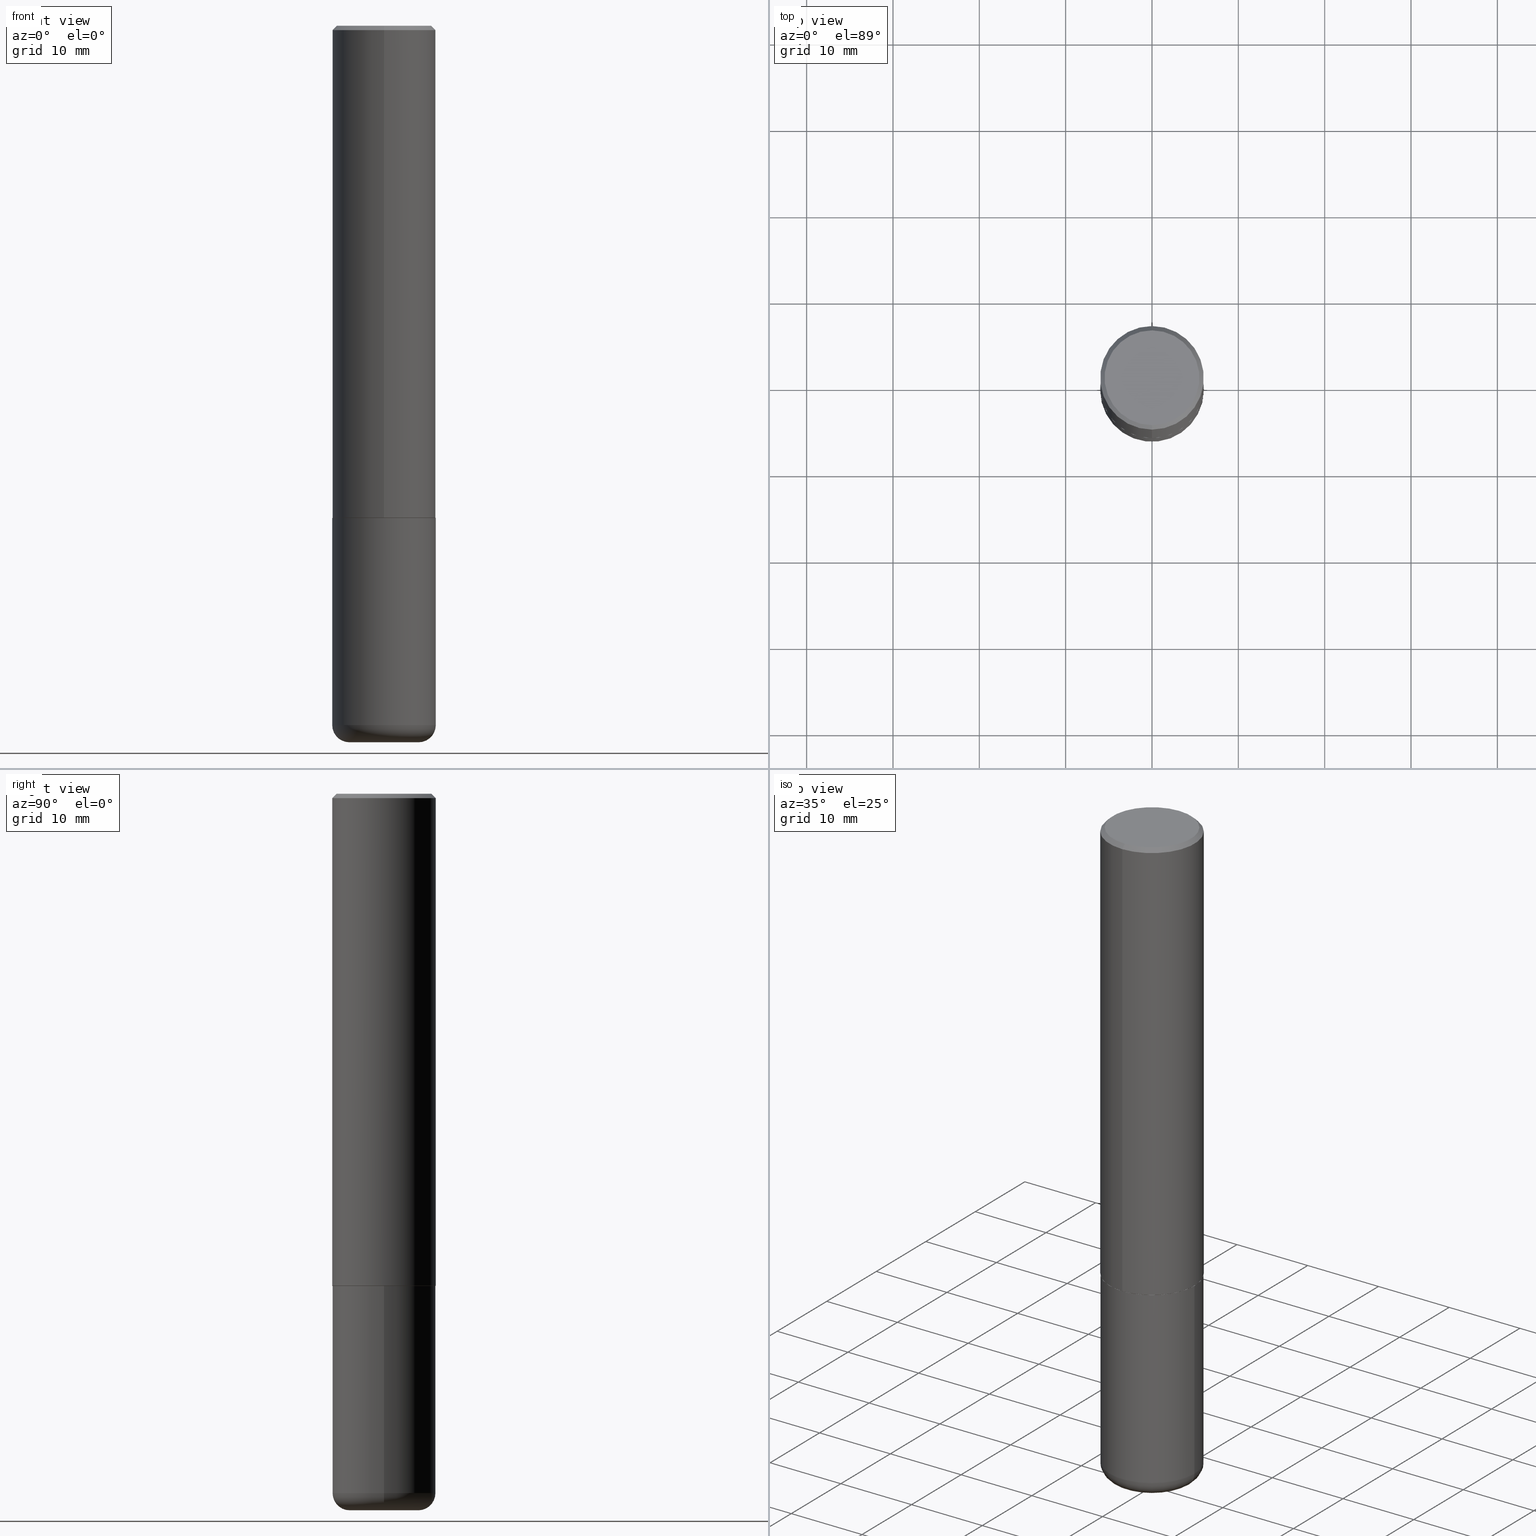
[diagram: canonical four-view strip — front | top / right | iso, engineering-drawing reading convention]
A machine part, canonical four-view strip (front | top / right | iso — engineering-drawing reading convention). The complete STEP part file that produces these views, byte-faithful:
ISO-10303-21;
HEADER;
FILE_DESCRIPTION (( 'STEP AP203' ),
    '1' );
FILE_NAME ('44815.STEP',
    '2024-03-04T08:17:37',
    ( '' ),
    ( '' ),
    'SwSTEP 2.0',
    'SolidWorks 2023',
    '' );
FILE_SCHEMA (( 'CONFIG_CONTROL_DESIGN' ));
ENDSEC;

DATA;
#1 = EDGE_LOOP ( 'NONE', ( #177, #71, #389, #404 ) ) ;
#2 = CLOSED_SHELL ( 'NONE', ( #129, #232, #176, #273, #9, #51 ) ) ;
#3 = CARTESIAN_POINT ( 'NONE',  ( -1.551844647095921325E-15, -0.2162000000000003364, 4.541486610994609223E-16 ) ) ;
#4 =( GEOMETRIC_REPRESENTATION_CONTEXT ( 3 ) GLOBAL_UNCERTAINTY_ASSIGNED_CONTEXT ( ( #40 ) ) GLOBAL_UNIT_ASSIGNED_CONTEXT ( ( #291, #141, #354 ) ) REPRESENTATION_CONTEXT ( 'NONE', 'WORKASPACE' ) );
#5 = SECURITY_CLASSIFICATION ( '', '', #390 ) ;
#6 = APPLICATION_PROTOCOL_DEFINITION ( 'international standard', 'config_control_design', 1994, #17 ) ;
#7 = CONICAL_SURFACE ( 'NONE', #144, 0.2362000000000000210, 0.7853981633974459475 ) ;
#8 = CARTESIAN_POINT ( 'NONE',  ( 5.494812034256692671E-29, -7.825301261377769376E-15, -2.244100000000000428 ) ) ;
#9 = ADVANCED_FACE ( 'NONE', ( #109 ), #128, .T. ) ;
#10 = CARTESIAN_POINT ( 'NONE',  ( -1.620449627073635276E-15, -0.2362000000000001043, -0.01999999999999925449 ) ) ;
#11 = CARTESIAN_POINT ( 'NONE',  ( -1.620449627073635276E-15, -0.2362000000000001043, -0.01999999999999925449 ) ) ;
#12 = EDGE_LOOP ( 'NONE', ( #99, #135, #108, #336 ) ) ;
#13 = ORIENTED_EDGE ( 'NONE', *, *, #85, .F. ) ;
#14 = AXIS2_PLACEMENT_3D ( 'NONE', #220, #155, #21 ) ;
#15 = CARTESIAN_POINT ( 'NONE',  ( 5.487876547960065873E-29, -7.835233272497903917E-15, -2.244100000000000428 ) ) ;
#16 = EDGE_CURVE ( 'NONE', #270, #332, #178, .T. ) ;
#17 = APPLICATION_CONTEXT ( 'configuration controlled 3d designs of mechanical parts and assemblies' ) ;
#18 = DIRECTION ( 'NONE',  ( -2.445468806185136597E-29, 3.491481338843145583E-15, 1.000000000000000000 ) ) ;
#19 = CARTESIAN_POINT ( 'NONE',  ( 0.000000000000000000, 0.000000000000000000, 0.000000000000000000 ) ) ;
#20 = CC_DESIGN_PERSON_AND_ORGANIZATION_ASSIGNMENT ( #258, #288, ( #358 ) ) ;
#21 = DIRECTION ( 'NONE',  ( 1.000000000000000000, -6.982962677686261977E-15, 0.000000000000000000 ) ) ;
#22 = CIRCLE ( 'NONE', #372, 0.2362000000000002986 ) ;
#23 = DIRECTION ( 'NONE',  ( -2.445468806185136597E-29, 3.491481338843145583E-15, 1.000000000000000000 ) ) ;
#24 = CARTESIAN_POINT ( 'NONE',  ( 0.2361999999999999933, -1.649375784469496131E-15, 1.151752954443000088E-29 ) ) ;
#25 = DIRECTION ( 'NONE',  ( 1.000000000000000000, -6.982962677686264344E-15, 0.000000000000000000 ) ) ;
#26 = CARTESIAN_POINT ( 'NONE',  ( 7.798600022924401307E-29, -1.113433398957079310E-14, -3.189000000000000501 ) ) ;
#27 = DIRECTION ( 'NONE',  ( -6.982962677686265922E-15, -1.000000000000000000, 3.469747663417772663E-15 ) ) ;
#28 = CARTESIAN_POINT ( 'NONE',  ( 5.494812034256692671E-29, -7.825301261377769376E-15, -2.244100000000000428 ) ) ;
#29 = VERTEX_POINT ( 'NONE', #276 ) ;
#30 = PERSON_AND_ORGANIZATION ( #133, #357 ) ;
#31 = DIRECTION ( 'NONE',  ( -4.937700262164462845E-15, -0.7071067811865329178, 0.7071067811865620056 ) ) ;
#32 = APPLICATION_CONTEXT ( 'configuration controlled 3d designs of mechanical parts and assemblies' ) ;
#33 = EDGE_CURVE ( 'NONE', #55, #298, #282, .T. ) ;
#34 = AXIS2_PLACEMENT_3D ( 'NONE', #409, #126, #117 ) ;
#35 = DIMENSIONAL_EXPONENTS ( 1.000000000000000000, 0.000000000000000000, 0.000000000000000000, 0.000000000000000000, 0.000000000000000000, 0.000000000000000000, 0.000000000000000000 ) ;
#36 = ORIENTED_EDGE ( 'NONE', *, *, #169, .F. ) ;
#37 = ORIENTED_EDGE ( 'NONE', *, *, #242, .F. ) ;
#38 = DIRECTION ( 'NONE',  ( 5.024295867787975615E-15, 0.7071067811865378028, 0.7071067811865571207 ) ) ;
#39 = EDGE_CURVE ( 'NONE', #261, #332, #73, .T. ) ;
#40 = UNCERTAINTY_MEASURE_WITH_UNIT (LENGTH_MEASURE( 1.000000000000000082E-05 ), #291, 'distance_accuracy_value', 'NONE');
#41 = CIRCLE ( 'NONE', #48, 0.2362000000000000210 ) ;
#42 = DIRECTION ( 'NONE',  ( -6.982962677686265922E-15, -1.000000000000000000, 3.487819265831411350E-15 ) ) ;
#43 = ORIENTED_EDGE ( 'NONE', *, *, #264, .F. ) ;
#44 = CARTESIAN_POINT ( 'NONE',  ( 7.798600022924401307E-29, -1.113433398957079310E-14, -3.189000000000000501 ) ) ;
#45 = DIRECTION ( 'NONE',  ( -2.445468806185136597E-29, 3.491481338843145583E-15, 1.000000000000000000 ) ) ;
#46 = CARTESIAN_POINT ( 'NONE',  ( 0.2362000000000001321, -1.278370977404028805E-14, -3.189000000000000501 ) ) ;
#47 = AXIS2_PLACEMENT_3D ( 'NONE', #249, #217, #252 ) ;
#48 = AXIS2_PLACEMENT_3D ( 'NONE', #316, #23, #25 ) ;
#49 = PLANE ( 'NONE',  #110 ) ;
#50 = CC_DESIGN_DATE_AND_TIME_ASSIGNMENT ( #195, #125, ( #5 ) ) ;
#51 = ADVANCED_FACE ( 'NONE', ( #154 ), #402, .T. ) ;
#52 = DIRECTION ( 'NONE',  ( -2.448559348628265803E-29, 3.487055506161832692E-15, 1.000000000000000000 ) ) ;
#53 = EDGE_LOOP ( 'NONE', ( #248, #383 ) ) ;
#54 = DIRECTION ( 'NONE',  ( 4.937700262164536209E-15, 0.7071067811865434649, -0.7071067811865516806 ) ) ;
#55 = VERTEX_POINT ( 'NONE', #407 ) ;
#56 = APPROVAL_DATE_TIME ( #231, #366 ) ;
#57 = CARTESIAN_POINT ( 'NONE',  ( 5.494812034256691550E-29, -7.825301261377769376E-15, -2.244100000000000428 ) ) ;
#58 = ORIENTED_EDGE ( 'NONE', *, *, #67, .T. ) ;
#59 = APPROVAL_ROLE ( '' ) ;
#60 = FACE_OUTER_BOUND ( 'NONE', #277, .T. ) ;
#61 = ORIENTED_EDGE ( 'NONE', *, *, #16, .T. ) ;
#62 = DATE_TIME_ROLE ( 'creation_date' ) ;
#63 = AXIS2_PLACEMENT_3D ( 'NONE', #8, #114, #210 ) ;
#64 = ORIENTED_EDGE ( 'NONE', *, *, #242, .T. ) ;
#65 = COORDINATED_UNIVERSAL_TIME_OFFSET ( 5, 0, .BEHIND. ) ;
#66 = VERTEX_POINT ( 'NONE', #10 ) ;
#67 = EDGE_CURVE ( 'NONE', #66, #298, #179, .T. ) ;
#68 = DIRECTION ( 'NONE',  ( -2.448559348628265803E-29, 3.487055506161832692E-15, 1.000000000000000000 ) ) ;
#69 = CIRCLE ( 'NONE', #234, 0.2351999999999999924 ) ;
#70 = ORIENTED_EDGE ( 'NONE', *, *, #39, .F. ) ;
#71 = ORIENTED_EDGE ( 'NONE', *, *, #209, .T. ) ;
#72 = LINE ( 'NONE', #146, #378 ) ;
#73 = CIRCLE ( 'NONE', #315, 0.2361999999999999933 ) ;
#74 = AXIS2_PLACEMENT_3D ( 'NONE', #26, #18, #314 ) ;
#75 = CARTESIAN_POINT ( 'NONE',  ( 0.000000000000000000, 0.000000000000000000, 0.000000000000000000 ) ) ;
#76 = DIRECTION ( 'NONE',  ( -2.445468806185136597E-29, 3.491481338843145583E-15, 1.000000000000000000 ) ) ;
#77 = EDGE_LOOP ( 'NONE', ( #250, #387 ) ) ;
#78 = PRODUCT_DEFINITION_SHAPE ( 'NONE', 'NONE',  #327 ) ;
#79 = ORIENTED_EDGE ( 'NONE', *, *, #391, .F. ) ;
#80 = DIRECTION ( 'NONE',  ( -6.982962677686265133E-15, -1.000000000000000000, 3.484499991918703113E-15 ) ) ;
#81 = PLANE ( 'NONE',  #119 ) ;
#82 = AXIS2_PLACEMENT_3D ( 'NONE', #121, #188, #222 ) ;
#83 = DIRECTION ( 'NONE',  ( 2.448559348628265803E-29, -3.487055506161832692E-15, -1.000000000000000000 ) ) ;
#84 = DIRECTION ( 'NONE',  ( 1.000000000000000000, -6.982962677686273810E-15, 0.000000000000000000 ) ) ;
#85 = EDGE_CURVE ( 'NONE', #97, #270, #370, .T. ) ;
#86 = MECHANICAL_CONTEXT ( 'NONE', #17, 'mechanical' ) ;
#87 = DIRECTION ( 'NONE',  ( -2.448559348628265803E-29, 3.487055506161832692E-15, 1.000000000000000000 ) ) ;
#88 = CARTESIAN_POINT ( 'NONE',  ( 1.674749228186611702E-15, 0.2351999999999921653, -2.244100000000001316 ) ) ;
#89 = ORIENTED_EDGE ( 'NONE', *, *, #203, .F. ) ;
#90 = DATE_AND_TIME ( #127, #152 ) ;
#91 = AXIS2_PLACEMENT_3D ( 'NONE', #142, #68, #321 ) ;
#92 = DIRECTION ( 'NONE',  ( -2.448559348628265803E-29, 3.487055506161832692E-15, 1.000000000000000000 ) ) ;
#93 = CARTESIAN_POINT ( 'NONE',  ( 0.000000000000000000, 0.000000000000000000, 0.000000000000000000 ) ) ;
#94 = ORIENTED_EDGE ( 'NONE', *, *, #33, .T. ) ;
#95 = DATE_AND_TIME ( #290, #398 ) ;
#96 = ADVANCED_FACE ( 'NONE', ( #111 ), #292, .T. ) ;
#97 = VERTEX_POINT ( 'NONE', #247 ) ;
#98 = APPROVAL_STATUS ( 'not_yet_approved' ) ;
#99 = ORIENTED_EDGE ( 'NONE', *, *, #16, .F. ) ;
#100 = CALENDAR_DATE ( 2024, 4, 3 ) ;
#101 = AXIS2_PLACEMENT_3D ( 'NONE', #57, #406, #256 ) ;
#102 = VERTEX_POINT ( 'NONE', #46 ) ;
#103 = PRODUCT_RELATED_PRODUCT_CATEGORY ( 'detail', '', ( #340 ) ) ;
#104 = AXIS2_PLACEMENT_3D ( 'NONE', #28, #208, #266 ) ;
#105 = ORIENTED_EDGE ( 'NONE', *, *, #169, .T. ) ;
#106 = EDGE_CURVE ( 'NONE', #303, #66, #151, .T. ) ;
#107 = CYLINDRICAL_SURFACE ( 'NONE', #310, 0.2362000000000001598 ) ;
#108 = ORIENTED_EDGE ( 'NONE', *, *, #203, .T. ) ;
#109 = FACE_OUTER_BOUND ( 'NONE', #309, .T. ) ;
#110 = AXIS2_PLACEMENT_3D ( 'NONE', #317, #166, #131 ) ;
#111 = FACE_OUTER_BOUND ( 'NONE', #140, .T. ) ;
#112 = CC_DESIGN_APPROVAL ( #366, ( #5 ) ) ;
#113 = ORIENTED_EDGE ( 'NONE', *, *, #331, .T. ) ;
#114 = DIRECTION ( 'NONE',  ( -2.448559348628265803E-29, 3.487055506161832692E-15, 1.000000000000000000 ) ) ;
#115 = VERTEX_POINT ( 'NONE', #181 ) ;
#116 = CARTESIAN_POINT ( 'NONE',  ( 4.897118697256550314E-31, -6.974111012323692057E-17, -0.02000000000000007674 ) ) ;
#117 = DIRECTION ( 'NONE',  ( 1.000000000000000000, -6.982962677686266711E-15, 4.876176775795936353E-29 ) ) ;
#118 = CONICAL_SURFACE ( 'NONE', #63, 0.2351999999999999924, 0.7853981633974311816 ) ;
#119 = AXIS2_PLACEMENT_3D ( 'NONE', #411, #219, #341 ) ;
#120 = APPROVAL_PERSON_ORGANIZATION ( #202, #416, #320 ) ;
#121 = CARTESIAN_POINT ( 'NONE',  ( 5.487876547960065873E-29, -7.835233272497903917E-15, -2.244100000000000428 ) ) ;
#122 = PLANE ( 'NONE',  #101 ) ;
#123 = DIRECTION ( 'NONE',  ( -6.982962677686265922E-15, -1.000000000000000000, 3.469747663417772663E-15 ) ) ;
#124 = ORIENTED_EDGE ( 'NONE', *, *, #296, .F. ) ;
#125 = DATE_TIME_ROLE ( 'classification_date' ) ;
#126 = DIRECTION ( 'NONE',  ( -2.445468806185136597E-29, 3.491481338843145583E-15, 1.000000000000000000 ) ) ;
#127 = CALENDAR_DATE ( 2024, 4, 3 ) ;
#128 = TOROIDAL_SURFACE ( 'NONE', #410, 0.1575000000000000011, 0.07870000000000024198 ) ;
#129 = ADVANCED_FACE ( 'NONE', ( #335 ), #211, .T. ) ;
#130 = AXIS2_PLACEMENT_3D ( 'NONE', #293, #322, #27 ) ;
#131 = DIRECTION ( 'NONE',  ( 6.982962677686265922E-15, 1.000000000000000000, -3.487055506161832692E-15 ) ) ;
#132 = ORIENTED_EDGE ( 'NONE', *, *, #147, .F. ) ;
#133 = PERSON ( 'UNSPECIFIED', 'UNSPECIFIED', 'UNSPECIFIED', ('UNSPECIFIED'), ('UNSPECIFIED'), ('UNSPECIFIED') ) ;
#134 = EDGE_CURVE ( 'NONE', #201, #55, #72, .T. ) ;
#135 = ORIENTED_EDGE ( 'NONE', *, *, #350, .T. ) ;
#136 = AXIS2_PLACEMENT_3D ( 'NONE', #116, #244, #42 ) ;
#137 = AXIS2_PLACEMENT_3D ( 'NONE', #351, #197, #84 ) ;
#138 = LOCAL_TIME ( 3, 17, 37.00000000000000000, #233 ) ;
#139 = DIRECTION ( 'NONE',  ( 6.982962677686265922E-15, 1.000000000000000000, -3.487819265831411350E-15 ) ) ;
#140 = EDGE_LOOP ( 'NONE', ( #396, #374, #287, #352 ) ) ;
#141 =( NAMED_UNIT ( * ) PLANE_ANGLE_UNIT ( ) SI_UNIT ( $, .RADIAN. ) );
#142 = CARTESIAN_POINT ( 'NONE',  ( 7.339623721700842892E-45, -1.045254440177283923E-30, -2.997527393327285821E-16 ) ) ;
#143 = ADVANCED_FACE ( 'NONE', ( #369 ), #118, .T. ) ;
#144 = AXIS2_PLACEMENT_3D ( 'NONE', #281, #83, #160 ) ;
#145 = DIRECTION ( 'NONE',  ( 1.000000000000000000, -6.982962677686261977E-15, 0.000000000000000000 ) ) ;
#146 = CARTESIAN_POINT ( 'NONE',  ( 1.671196514507810212E-15, 0.2351999999999921653, -2.244100000000001316 ) ) ;
#147 = EDGE_CURVE ( 'NONE', #29, #97, #305, .T. ) ;
#148 = CARTESIAN_POINT ( 'NONE',  ( -0.2361999999999999933, 1.678301941865356591E-15, -1.161852468318208757E-29 ) ) ;
#149 = ORIENTED_EDGE ( 'NONE', *, *, #106, .T. ) ;
#150 = AXIS2_PLACEMENT_3D ( 'NONE', #158, #52, #254 ) ;
#151 = LINE ( 'NONE', #11, #167 ) ;
#152 = LOCAL_TIME ( 3, 17, 37.00000000000000000, #262 ) ;
#153 = CARTESIAN_POINT ( 'NONE',  ( 5.494812034256692671E-29, -7.825301261377769376E-15, -2.244100000000000428 ) ) ;
#154 = FACE_OUTER_BOUND ( 'NONE', #243, .T. ) ;
#155 = DIRECTION ( 'NONE',  ( -2.445468806185136597E-29, 3.491481338843145583E-15, 1.000000000000000000 ) ) ;
#156 = DIRECTION ( 'NONE',  ( 0.000000000000000000, 0.000000000000000000, 1.000000000000000000 ) ) ;
#157 = ADVANCED_FACE ( 'NONE', ( #400 ), #107, .T. ) ;
#158 = CARTESIAN_POINT ( 'NONE',  ( 7.339623721700842892E-45, -1.045254440177283923E-30, -2.997527393327285821E-16 ) ) ;
#159 = CIRCLE ( 'NONE', #137, 0.07870000000000024198 ) ;
#160 = DIRECTION ( 'NONE',  ( 6.982962677686265922E-15, 1.000000000000000000, -3.487819265831411350E-15 ) ) ;
#161 = LINE ( 'NONE', #24, #272 ) ;
#162 = PERSON_AND_ORGANIZATION_ROLE ( 'design_supplier' ) ;
#163 = DIRECTION ( 'NONE',  ( -2.448559348628265803E-29, 3.487055506161832692E-15, 1.000000000000000000 ) ) ;
#164 = FACE_OUTER_BOUND ( 'NONE', #12, .T. ) ;
#165 = EDGE_LOOP ( 'NONE', ( #238, #170 ) ) ;
#166 = DIRECTION ( 'NONE',  ( 2.448559348628265523E-29, -3.487055506161832692E-15, -1.000000000000000000 ) ) ;
#167 = VECTOR ( 'NONE', #186, 39.37007874015748143 ) ;
#168 = PERSON_AND_ORGANIZATION ( #133, #357 ) ;
#169 = EDGE_CURVE ( 'NONE', #376, #55, #173, .T. ) ;
#170 = ORIENTED_EDGE ( 'NONE', *, *, #255, .T. ) ;
#171 = APPROVAL_STATUS ( 'not_yet_approved' ) ;
#172 = CARTESIAN_POINT ( 'NONE',  ( 7.798600022924401307E-29, -1.113433398957079310E-14, -3.189000000000000501 ) ) ;
#173 = CIRCLE ( 'NONE', #130, 0.2362000000000002986 ) ;
#174 = DESIGN_CONTEXT ( 'detailed design', #32, 'design' ) ;
#175 = ORIENTED_EDGE ( 'NONE', *, *, #350, .F. ) ;
#176 = ADVANCED_FACE ( 'NONE', ( #413 ), #81, .F. ) ;
#177 = ORIENTED_EDGE ( 'NONE', *, *, #33, .F. ) ;
#178 = LINE ( 'NONE', #148, #213 ) ;
#179 = CIRCLE ( 'NONE', #136, 0.2362000000000000210 ) ;
#180 = LOCAL_TIME ( 3, 17, 37.00000000000000000, #65 ) ;
#181 = CARTESIAN_POINT ( 'NONE',  ( 1.579546157692634805E-15, 0.2162000000000003364, -1.053654139764917988E-15 ) ) ;
#182 = CARTESIAN_POINT ( 'NONE',  ( 1.678301941865357577E-15, 0.2362000000000001598, -8.236425105554254759E-16 ) ) ;
#183 = DIRECTION ( 'NONE',  ( -6.982962677686265133E-15, -1.000000000000000000, 3.484499991918703113E-15 ) ) ;
#184 = CIRCLE ( 'NONE', #91, 0.2162000000000003364 ) ;
#185 = AXIS2_PLACEMENT_3D ( 'NONE', #199, #418, #139 ) ;
#186 = DIRECTION ( 'NONE',  ( -4.851104656540952442E-15, -0.7071067811865483499, -0.7071067811865467956 ) ) ;
#187 = CARTESIAN_POINT ( 'NONE',  ( -1.642392821791754699E-15, -0.2352000000000078195, -2.244099999999999540 ) ) ;
#188 = DIRECTION ( 'NONE',  ( -2.445468806185136597E-29, 3.491481338843145583E-15, 1.000000000000000000 ) ) ;
#189 = CC_DESIGN_DATE_AND_TIME_ASSIGNMENT ( #90, #62, ( #327 ) ) ;
#190 = FACE_OUTER_BOUND ( 'NONE', #165, .T. ) ;
#191 = CIRCLE ( 'NONE', #223, 0.2362000000000000210 ) ;
#192 = MANIFOLD_SOLID_BREP ( 'Body-Move/Copy2[1]', #2 ) ;
#193 = ADVANCED_FACE ( 'NONE', ( #190 ), #49, .F. ) ;
#194 = CARTESIAN_POINT ( 'NONE',  ( 5.492363474908063915E-29, -7.821814205871606912E-15, -2.243100000000000094 ) ) ;
#195 = DATE_AND_TIME ( #353, #339 ) ;
#196 = APPROVAL ( #171, 'UNSPECIFIED' ) ;
#197 = DIRECTION ( 'NONE',  ( -6.982962677686266711E-15, -1.000000000000000000, 3.491481338843145583E-15 ) ) ;
#198 = PERSON_AND_ORGANIZATION ( #133, #357 ) ;
#199 = CARTESIAN_POINT ( 'NONE',  ( 4.897118697256550314E-31, -6.974111012323692057E-17, -0.02000000000000007674 ) ) ;
#200 = AXIS2_PLACEMENT_3D ( 'NONE', #373, #76, #377 ) ;
#201 = VERTEX_POINT ( 'NONE', #88 ) ;
#202 = PERSON_AND_ORGANIZATION ( #133, #357 ) ;
#203 = EDGE_CURVE ( 'NONE', #102, #261, #161, .T. ) ;
#204 = VECTOR ( 'NONE', #31, 39.37007874015748854 ) ;
#205 = PERSON_AND_ORGANIZATION ( #133, #357 ) ;
#206 = ORIENTED_EDGE ( 'NONE', *, *, #147, .T. ) ;
#207 = CIRCLE ( 'NONE', #104, 0.2351999999999999924 ) ;
#208 = DIRECTION ( 'NONE',  ( -2.448559348628265803E-29, 3.487055506161832692E-15, 1.000000000000000000 ) ) ;
#209 = EDGE_CURVE ( 'NONE', #55, #376, #22, .T. ) ;
#210 = DIRECTION ( 'NONE',  ( -6.982962677686265133E-15, -1.000000000000000000, 3.484499991918703113E-15 ) ) ;
#211 = CYLINDRICAL_SURFACE ( 'NONE', #200, 0.2361999999999999933 ) ;
#212 = ORIENTED_EDGE ( 'NONE', *, *, #134, .T. ) ;
#213 = VECTOR ( 'NONE', #375, 39.37007874015748143 ) ;
#214 = APPROVAL_PERSON_ORGANIZATION ( #198, #196, #392 ) ;
#215 = DIRECTION ( 'NONE',  ( -2.448559348628265803E-29, 3.487055506161832692E-15, 1.000000000000000000 ) ) ;
#216 = EDGE_LOOP ( 'NONE', ( #105, #94, #267, #79 ) ) ;
#217 = DIRECTION ( 'NONE',  ( 7.105427357601001859E-15, 1.000000000000000000, -3.491481338843145583E-15 ) ) ;
#218 = AXIS2_PLACEMENT_3D ( 'NONE', #19, #156, #382 ) ;
#219 = DIRECTION ( 'NONE',  ( 2.438088387897960049E-29, -3.491481338843145188E-15, -1.000000000000000000 ) ) ;
#220 = CARTESIAN_POINT ( 'NONE',  ( 7.991058417971172834E-29, -1.140911357093774960E-14, -3.267700000000000937 ) ) ;
#221 = EDGE_CURVE ( 'NONE', #332, #261, #240, .T. ) ;
#222 = DIRECTION ( 'NONE',  ( 1.000000000000000000, -6.982962677686269077E-15, 0.000000000000000000 ) ) ;
#223 = AXIS2_PLACEMENT_3D ( 'NONE', #172, #302, #362 ) ;
#224 = VERTEX_POINT ( 'NONE', #187 ) ;
#225 = PERSON_AND_ORGANIZATION_ROLE ( 'classification_officer' ) ;
#226 = CC_DESIGN_PERSON_AND_ORGANIZATION_ASSIGNMENT ( #168, #225, ( #5 ) ) ;
#227 = DIRECTION ( 'NONE',  ( -6.982962677686265922E-15, -1.000000000000000000, 3.487055506161832692E-15 ) ) ;
#228 = ORIENTED_EDGE ( 'NONE', *, *, #313, .F. ) ;
#229 = APPROVAL_DATE_TIME ( #95, #416 ) ;
#230 = ORIENTED_EDGE ( 'NONE', *, *, #306, .F. ) ;
#231 = DATE_AND_TIME ( #359, #138 ) ;
#232 = ADVANCED_FACE ( 'NONE', ( #347 ), #346, .T. ) ;
#233 = COORDINATED_UNIVERSAL_TIME_OFFSET ( 5, 0, .BEHIND. ) ;
#234 = AXIS2_PLACEMENT_3D ( 'NONE', #153, #163, #80 ) ;
#235 = LINE ( 'NONE', #269, #394 ) ;
#236 = LENGTH_MEASURE_WITH_UNIT ( LENGTH_MEASURE( 0.02539999999999999897 ), #300 );
#237 = ORIENTED_EDGE ( 'NONE', *, *, #296, .T. ) ;
#238 = ORIENTED_EDGE ( 'NONE', *, *, #313, .T. ) ;
#239 = AXIS2_PLACEMENT_3D ( 'NONE', #367, #330, #308 ) ;
#240 = CIRCLE ( 'NONE', #82, 0.2361999999999999933 ) ;
#241 = CC_DESIGN_SECURITY_CLASSIFICATION ( #5, ( #358 ) ) ;
#242 = EDGE_CURVE ( 'NONE', #97, #29, #285, .T. ) ;
#243 = EDGE_LOOP ( 'NONE', ( #132, #37 ) ) ;
#244 = DIRECTION ( 'NONE',  ( -2.448559348628265803E-29, 3.487055506161832692E-15, 1.000000000000000000 ) ) ;
#245 = CLOSED_SHELL ( 'NONE', ( #143, #279, #301, #360, #157, #96, #371, #193 ) ) ;
#246 = AXIS2_PLACEMENT_3D ( 'NONE', #311, #45, #145 ) ;
#247 = CARTESIAN_POINT ( 'NONE',  ( -0.1575000000000000011, -9.873020404910514350E-15, -3.267700000000000937 ) ) ;
#248 = ORIENTED_EDGE ( 'NONE', *, *, #331, .F. ) ;
#249 = CARTESIAN_POINT ( 'NONE',  ( -0.1575000000000000011, -1.001522918074863550E-14, -3.189000000000000501 ) ) ;
#250 = ORIENTED_EDGE ( 'NONE', *, *, #39, .T. ) ;
#251 = CARTESIAN_POINT ( 'NONE',  ( -1.649375784469443277E-15, -0.2362000000000081257, -2.243099999999999206 ) ) ;
#252 = DIRECTION ( 'NONE',  ( -1.000000000000000000, 7.105427357600995548E-15, 0.000000000000000000 ) ) ;
#253 = FACE_OUTER_BOUND ( 'NONE', #216, .T. ) ;
#254 = DIRECTION ( 'NONE',  ( -6.982962677686265922E-15, -1.000000000000000000, 3.487055506161832692E-15 ) ) ;
#255 = EDGE_CURVE ( 'NONE', #303, #115, #333, .T. ) ;
#256 = DIRECTION ( 'NONE',  ( -6.982962677686265922E-15, -1.000000000000000000, 3.487055506161832692E-15 ) ) ;
#257 = ORIENTED_EDGE ( 'NONE', *, *, #365, .T. ) ;
#258 = PERSON_AND_ORGANIZATION ( #133, #357 ) ;
#259 = CARTESIAN_POINT ( 'NONE',  ( 4.897118697256550314E-31, -6.974111012323692057E-17, -0.02000000000000007674 ) ) ;
#260 = CYLINDRICAL_SURFACE ( 'NONE', #364, 0.2362000000000001598 ) ;
#261 = VERTEX_POINT ( 'NONE', #343 ) ;
#262 = COORDINATED_UNIVERSAL_TIME_OFFSET ( 5, 0, .BEHIND. ) ;
#263 = ORIENTED_EDGE ( 'NONE', *, *, #255, .F. ) ;
#264 = EDGE_CURVE ( 'NONE', #115, #298, #283, .T. ) ;
#265 = DATE_AND_TIME ( #100, #180 ) ;
#266 = DIRECTION ( 'NONE',  ( -6.982962677686265133E-15, -1.000000000000000000, 3.484499991918703113E-15 ) ) ;
#267 = ORIENTED_EDGE ( 'NONE', *, *, #67, .F. ) ;
#268 = CC_DESIGN_APPROVAL ( #196, ( #327 ) ) ;
#269 = CARTESIAN_POINT ( 'NONE',  ( -1.649375784469497117E-15, -0.2362000000000001598, 8.236425105554254759E-16 ) ) ;
#270 = VERTEX_POINT ( 'NONE', #318 ) ;
#271 = CC_DESIGN_PERSON_AND_ORGANIZATION_ASSIGNMENT ( #30, #162, ( #358 ) ) ;
#272 = VECTOR ( 'NONE', #286, 39.37007874015748143 ) ;
#273 = ADVANCED_FACE ( 'NONE', ( #164 ), #289, .T. ) ;
#274 = DIRECTION ( 'NONE',  ( -2.448559348628265803E-29, 3.487055506161832692E-15, 1.000000000000000000 ) ) ;
#275 = ORIENTED_EDGE ( 'NONE', *, *, #264, .T. ) ;
#276 = CARTESIAN_POINT ( 'NONE',  ( 0.1575000000000000011, -1.250893019267333471E-14, -3.267700000000000937 ) ) ;
#277 = EDGE_LOOP ( 'NONE', ( #263, #149, #58, #43 ) ) ;
#278 = DIRECTION ( 'NONE',  ( -2.445468806185136597E-29, 3.491481338843145583E-15, 1.000000000000000000 ) ) ;
#279 = ADVANCED_FACE ( 'NONE', ( #253 ), #260, .T. ) ;
#280 = ORIENTED_EDGE ( 'NONE', *, *, #408, .F. ) ;
#281 = CARTESIAN_POINT ( 'NONE',  ( 4.897118697256550314E-31, -6.974111012323692057E-17, -0.02000000000000007674 ) ) ;
#282 = LINE ( 'NONE', #182, #385 ) ;
#283 = LINE ( 'NONE', #386, #363 ) ;
#284 = CC_DESIGN_PERSON_AND_ORGANIZATION_ASSIGNMENT ( #295, #415, ( #340 ) ) ;
#285 = CIRCLE ( 'NONE', #14, 0.1575000000000000011 ) ;
#286 = DIRECTION ( 'NONE',  ( -2.445468806185136877E-29, 3.491481338843145188E-15, 1.000000000000000000 ) ) ;
#287 = ORIENTED_EDGE ( 'NONE', *, *, #408, .T. ) ;
#288 = PERSON_AND_ORGANIZATION_ROLE ( 'creator' ) ;
#289 = CYLINDRICAL_SURFACE ( 'NONE', #34, 0.2361999999999999933 ) ;
#290 = CALENDAR_DATE ( 2024, 4, 3 ) ;
#291 =( CONVERSION_BASED_UNIT ( 'INCH', #236 ) LENGTH_UNIT ( ) NAMED_UNIT ( #35 ) );
#292 = CONICAL_SURFACE ( 'NONE', #338, 0.2351999999999999924, 0.7853981633974311816 ) ;
#293 = CARTESIAN_POINT ( 'NONE',  ( 5.492363474908063915E-29, -7.821814205871606912E-15, -2.243100000000000094 ) ) ;
#294 = AXIS2_PLACEMENT_3D ( 'NONE', #259, #92, #349 ) ;
#295 = PERSON_AND_ORGANIZATION ( #133, #357 ) ;
#296 = EDGE_CURVE ( 'NONE', #29, #102, #159, .T. ) ;
#297 = DIRECTION ( 'NONE',  ( -2.448559348628265803E-29, 3.487055506161832692E-15, 1.000000000000000000 ) ) ;
#298 = VERTEX_POINT ( 'NONE', #393 ) ;
#299 = PERSON_AND_ORGANIZATION ( #133, #357 ) ;
#300 =( LENGTH_UNIT ( ) NAMED_UNIT ( * ) SI_UNIT ( $, .METRE. ) );
#301 = ADVANCED_FACE ( 'NONE', ( #60 ), #324, .T. ) ;
#302 = DIRECTION ( 'NONE',  ( -2.445468806185136597E-29, 3.491481338843145583E-15, 1.000000000000000000 ) ) ;
#303 = VERTEX_POINT ( 'NONE', #3 ) ;
#304 = DIRECTION ( 'NONE',  ( 1.000000000000000000, -6.982962677686265922E-15, 4.883557194083112901E-29 ) ) ;
#305 = CIRCLE ( 'NONE', #246, 0.1575000000000000011 ) ;
#306 = EDGE_CURVE ( 'NONE', #102, #270, #191, .T. ) ;
#307 = ADVANCED_BREP_SHAPE_REPRESENTATION ( '44815', ( #192, #329, #218 ), #4 ) ;
#308 = DIRECTION ( 'NONE',  ( -1.000000000000000000, 6.982962677686265922E-15, -4.876176775795935793E-29 ) ) ;
#309 = EDGE_LOOP ( 'NONE', ( #13, #64, #237, #175 ) ) ;
#310 = AXIS2_PLACEMENT_3D ( 'NONE', #75, #215, #312 ) ;
#311 = CARTESIAN_POINT ( 'NONE',  ( 7.991058417971172834E-29, -1.140911357093774960E-14, -3.267700000000000937 ) ) ;
#312 = DIRECTION ( 'NONE',  ( -6.982962677686265922E-15, -1.000000000000000000, 3.487055506161832692E-15 ) ) ;
#313 = EDGE_CURVE ( 'NONE', #115, #303, #184, .T. ) ;
#314 = DIRECTION ( 'NONE',  ( 1.000000000000000000, -6.982962677686265922E-15, 4.883557194083112901E-29 ) ) ;
#315 = AXIS2_PLACEMENT_3D ( 'NONE', #15, #278, #401 ) ;
#316 = CARTESIAN_POINT ( 'NONE',  ( 7.798600022924401307E-29, -1.113433398957079310E-14, -3.189000000000000501 ) ) ;
#317 = CARTESIAN_POINT ( 'NONE',  ( 1.509716530915773084E-15, 0.2162000000000003364, -9.037777700985536475E-16 ) ) ;
#318 = CARTESIAN_POINT ( 'NONE',  ( -0.2362000000000001321, -9.456032047705438285E-15, -3.189000000000000501 ) ) ;
#319 = ORIENTED_EDGE ( 'NONE', *, *, #106, .F. ) ;
#320 = APPROVAL_ROLE ( '' ) ;
#321 = DIRECTION ( 'NONE',  ( -6.982962677686265922E-15, -1.000000000000000000, 3.487055506161832692E-15 ) ) ;
#322 = DIRECTION ( 'NONE',  ( -2.448559348628265803E-29, 3.487055506161832692E-15, 1.000000000000000000 ) ) ;
#323 = SHAPE_DEFINITION_REPRESENTATION ( #78, #307 ) ;
#324 = CONICAL_SURFACE ( 'NONE', #185, 0.2362000000000000210, 0.7853981633974459475 ) ;
#325 = APPROVAL_PERSON_ORGANIZATION ( #299, #366, #59 ) ;
#326 = PERSON_AND_ORGANIZATION_ROLE ( 'creator' ) ;
#327 = PRODUCT_DEFINITION ( 'UNKNOWN', '', #358, #174 ) ;
#328 = CARTESIAN_POINT ( 'NONE',  ( -1.642392821791754699E-15, -0.2352000000000078195, -2.244099999999999540 ) ) ;
#329 = MANIFOLD_SOLID_BREP ( 'Body-Move/Copy2[2]', #245 ) ;
#330 = DIRECTION ( 'NONE',  ( 2.438088387897960049E-29, -3.491481338843145188E-15, -1.000000000000000000 ) ) ;
#331 = EDGE_CURVE ( 'NONE', #224, #201, #69, .T. ) ;
#332 = VERTEX_POINT ( 'NONE', #342 ) ;
#333 = CIRCLE ( 'NONE', #150, 0.2162000000000003364 ) ;
#334 = DIRECTION ( 'NONE',  ( -2.445468806185136597E-29, 3.491481338843145583E-15, 1.000000000000000000 ) ) ;
#335 = FACE_OUTER_BOUND ( 'NONE', #397, .T. ) ;
#336 = ORIENTED_EDGE ( 'NONE', *, *, #221, .F. ) ;
#337 = DIRECTION ( 'NONE',  ( -2.448559348628265803E-29, 3.487055506161832692E-15, 1.000000000000000000 ) ) ;
#338 = AXIS2_PLACEMENT_3D ( 'NONE', #405, #337, #183 ) ;
#339 = LOCAL_TIME ( 3, 17, 37.00000000000000000, #348 ) ;
#340 = PRODUCT ( '44815', '44815', '', ( #86 ) ) ;
#341 = DIRECTION ( 'NONE',  ( -1.000000000000000000, 6.982962677686265922E-15, -4.876176775795935793E-29 ) ) ;
#342 = CARTESIAN_POINT ( 'NONE',  ( -0.2361999999999999933, -7.806481689168991326E-15, -2.244100000000000428 ) ) ;
#343 = CARTESIAN_POINT ( 'NONE',  ( 0.2361999999999999933, -9.484609056967400443E-15, -2.244100000000000428 ) ) ;
#344 = ORIENTED_EDGE ( 'NONE', *, *, #85, .T. ) ;
#345 = FACE_OUTER_BOUND ( 'NONE', #414, .T. ) ;
#346 = TOROIDAL_SURFACE ( 'NONE', #74, 0.1575000000000000011, 0.07870000000000024198 ) ;
#347 = FACE_OUTER_BOUND ( 'NONE', #399, .T. ) ;
#348 = COORDINATED_UNIVERSAL_TIME_OFFSET ( 5, 0, .BEHIND. ) ;
#349 = DIRECTION ( 'NONE',  ( -6.982962677686265922E-15, -1.000000000000000000, 3.487819265831411350E-15 ) ) ;
#350 = EDGE_CURVE ( 'NONE', #270, #102, #41, .T. ) ;
#351 = CARTESIAN_POINT ( 'NONE',  ( 0.1575000000000000011, -1.223415061130637979E-14, -3.189000000000000501 ) ) ;
#352 = ORIENTED_EDGE ( 'NONE', *, *, #209, .F. ) ;
#353 = CALENDAR_DATE ( 2024, 4, 3 ) ;
#354 =( NAMED_UNIT ( * ) SI_UNIT ( $, .STERADIAN. ) SOLID_ANGLE_UNIT ( ) );
#355 = EDGE_LOOP ( 'NONE', ( #113, #212, #36, #280 ) ) ;
#356 = APPLICATION_PROTOCOL_DEFINITION ( 'international standard', 'config_control_design', 1994, #32 ) ;
#357 = ORGANIZATION ( 'UNSPECIFIED', 'UNSPECIFIED', '' ) ;
#358 = PRODUCT_DEFINITION_FORMATION_WITH_SPECIFIED_SOURCE ( 'ANY', '', #340, .NOT_KNOWN. ) ;
#359 = CALENDAR_DATE ( 2024, 4, 3 ) ;
#360 = ADVANCED_FACE ( 'NONE', ( #345 ), #7, .T. ) ;
#361 = LINE ( 'NONE', #328, #204 ) ;
#362 = DIRECTION ( 'NONE',  ( 1.000000000000000000, -6.982962677686264344E-15, 0.000000000000000000 ) ) ;
#363 = VECTOR ( 'NONE', #54, 39.37007874015748143 ) ;
#364 = AXIS2_PLACEMENT_3D ( 'NONE', #93, #381, #227 ) ;
#365 = EDGE_CURVE ( 'NONE', #298, #66, #379, .T. ) ;
#366 = APPROVAL ( #417, 'UNSPECIFIED' ) ;
#367 = CARTESIAN_POINT ( 'NONE',  ( 7.538501650987162025E-31, -2.274480841398118850E-14, -3.267700000000000937 ) ) ;
#368 = ORIENTED_EDGE ( 'NONE', *, *, #306, .T. ) ;
#369 = FACE_OUTER_BOUND ( 'NONE', #355, .T. ) ;
#370 = CIRCLE ( 'NONE', #47, 0.07870000000000024198 ) ;
#371 = ADVANCED_FACE ( 'NONE', ( #412 ), #122, .F. ) ;
#372 = AXIS2_PLACEMENT_3D ( 'NONE', #194, #87, #123 ) ;
#373 = CARTESIAN_POINT ( 'NONE',  ( 0.000000000000000000, 0.000000000000000000, 0.000000000000000000 ) ) ;
#374 = ORIENTED_EDGE ( 'NONE', *, *, #380, .T. ) ;
#375 = DIRECTION ( 'NONE',  ( -2.445468806185136877E-29, 3.491481338843145188E-15, 1.000000000000000000 ) ) ;
#376 = VERTEX_POINT ( 'NONE', #251 ) ;
#377 = DIRECTION ( 'NONE',  ( 1.000000000000000000, -6.982962677686266711E-15, 4.876176775795936353E-29 ) ) ;
#378 = VECTOR ( 'NONE', #38, 39.37007874015748854 ) ;
#379 = CIRCLE ( 'NONE', #294, 0.2362000000000000210 ) ;
#380 = EDGE_CURVE ( 'NONE', #201, #224, #207, .T. ) ;
#381 = DIRECTION ( 'NONE',  ( -2.448559348628265803E-29, 3.487055506161832692E-15, 1.000000000000000000 ) ) ;
#382 = DIRECTION ( 'NONE',  ( 1.000000000000000000, 0.000000000000000000, 0.000000000000000000 ) ) ;
#383 = ORIENTED_EDGE ( 'NONE', *, *, #380, .F. ) ;
#384 = APPROVAL_DATE_TIME ( #265, #196 ) ;
#385 = VECTOR ( 'NONE', #274, 39.37007874015748143 ) ;
#386 = CARTESIAN_POINT ( 'NONE',  ( 1.649375784469496722E-15, 0.2361999999999999655, -0.02000000000000090247 ) ) ;
#387 = ORIENTED_EDGE ( 'NONE', *, *, #221, .T. ) ;
#388 = COORDINATED_UNIVERSAL_TIME_OFFSET ( 5, 0, .BEHIND. ) ;
#389 = ORIENTED_EDGE ( 'NONE', *, *, #391, .T. ) ;
#390 = SECURITY_CLASSIFICATION_LEVEL ( 'unclassified' ) ;
#391 = EDGE_CURVE ( 'NONE', #376, #66, #235, .T. ) ;
#392 = APPROVAL_ROLE ( '' ) ;
#393 = CARTESIAN_POINT ( 'NONE',  ( 1.649375784469496722E-15, 0.2361999999999999655, -0.02000000000000090247 ) ) ;
#394 = VECTOR ( 'NONE', #297, 39.37007874015748143 ) ;
#395 = CC_DESIGN_PERSON_AND_ORGANIZATION_ASSIGNMENT ( #205, #326, ( #327 ) ) ;
#396 = ORIENTED_EDGE ( 'NONE', *, *, #134, .F. ) ;
#397 = EDGE_LOOP ( 'NONE', ( #368, #61, #70, #89 ) ) ;
#398 = LOCAL_TIME ( 3, 17, 37.00000000000000000, #388 ) ;
#399 = EDGE_LOOP ( 'NONE', ( #206, #344, #230, #124 ) ) ;
#400 = FACE_OUTER_BOUND ( 'NONE', #1, .T. ) ;
#401 = DIRECTION ( 'NONE',  ( 1.000000000000000000, -6.982962677686269077E-15, 0.000000000000000000 ) ) ;
#402 = PLANE ( 'NONE',  #239 ) ;
#403 = CC_DESIGN_APPROVAL ( #416, ( #358 ) ) ;
#404 = ORIENTED_EDGE ( 'NONE', *, *, #365, .F. ) ;
#405 = CARTESIAN_POINT ( 'NONE',  ( 5.494812034256692671E-29, -7.825301261377769376E-15, -2.244100000000000428 ) ) ;
#406 = DIRECTION ( 'NONE',  ( -2.448559348628265523E-29, 3.487055506161832692E-15, 1.000000000000000000 ) ) ;
#407 = CARTESIAN_POINT ( 'NONE',  ( 1.678301941865385779E-15, 0.2361999999999924715, -2.243100000000000982 ) ) ;
#408 = EDGE_CURVE ( 'NONE', #224, #376, #361, .T. ) ;
#409 = CARTESIAN_POINT ( 'NONE',  ( 0.000000000000000000, 0.000000000000000000, 0.000000000000000000 ) ) ;
#410 = AXIS2_PLACEMENT_3D ( 'NONE', #44, #334, #304 ) ;
#411 = CARTESIAN_POINT ( 'NONE',  ( 5.487876547960065873E-29, -7.835233272497903917E-15, -2.244100000000000428 ) ) ;
#412 = FACE_OUTER_BOUND ( 'NONE', #53, .T. ) ;
#413 = FACE_OUTER_BOUND ( 'NONE', #77, .T. ) ;
#414 = EDGE_LOOP ( 'NONE', ( #319, #228, #275, #257 ) ) ;
#415 = PERSON_AND_ORGANIZATION_ROLE ( 'design_owner' ) ;
#416 = APPROVAL ( #98, 'UNSPECIFIED' ) ;
#417 = APPROVAL_STATUS ( 'not_yet_approved' ) ;
#418 = DIRECTION ( 'NONE',  ( 2.448559348628265803E-29, -3.487055506161832692E-15, -1.000000000000000000 ) ) ;
ENDSEC;
END-ISO-10303-21;
